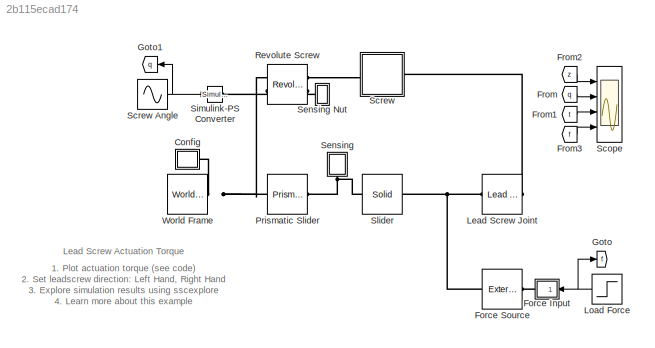
MODEL slx_2b115ecad174
KIND model
CONFIG AbsTol = 1e-4
CONFIG EnableMultiTasking = on
CONFIG FixedStep = auto
CONFIG MaxStep = 0.01
CONFIG MinStep = auto
CONFIG RelTol = 1e-3
CONFIG SampleTimeConstraint = Unconstrained
CONFIG Solver = ode23t
CONFIG SolverName = ode23t
CONFIG StartTime = 0.0
CONFIG StopTime = 16
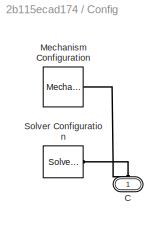
BLOCK [SubSystem] Config
  Ports = [0, 0, 0, 0, 0, 1]
  RequestExecContextInheritance = off
BLOCK [PMIOPort] Config/C
  Side = Left
BLOCK [Reference] Config/Mechanism Configuration  REF=sm_lib/Utilities/Mechanism
Configuration
  Ports = [0, 0, 0, 0, 0, 0, 1]
  SourceBlock = sm_lib/Utilities/Mechanism\nConfiguration
  SourceProductBaseCode = MS
  SourceProductName = Simscape Multibody
  SourceType = Mechanism\nConfiguration
BLOCK [Reference] Config/Solver Configuration  REF=nesl_utility/Solver
Configuration
  Ports = [0, 0, 0, 0, 0, 0, 1]
  SourceBlock = nesl_utility/Solver\nConfiguration
  SourceProductBaseCode = SS
  SourceProductName = Simscape
  SourceType = Solver\nConfiguration
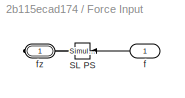
BLOCK [SubSystem] Force Input
  Ports = [1, 0, 0, 0, 0, 0, 1]
  RequestExecContextInheritance = off
BLOCK [Reference] Force Input/SL PS  REF=nesl_utility/Simulink-PS
Converter
  Ports = [1, 0, 0, 0, 0, 0, 1]
  SourceBlock = nesl_utility/Simulink-PS\nConverter
  SourceProductBaseCode = SS
  SourceProductName = Simscape
  SourceType = Simulink-PS\nConverter
BLOCK [Inport] Force Input/f
  IconDisplay = Port number
BLOCK [PMIOPort] Force Input/fz
  Side = Right
BLOCK [Reference] Force Source  REF=sm_lib/Forces and
Torques/External Force
and Torque
  Ports = [0, 0, 0, 0, 0, 1, 1]
  SourceBlock = sm_lib/Forces and\nTorques/External Force\nand Torque
  SourceProductBaseCode = MS
  SourceProductName = Simscape Multibody
  SourceType = External Force\nand Torque
BLOCK [From] From
  GotoTag = q
  TagVisibility = global
BLOCK [From] From1
  GotoTag = t
  TagVisibility = global
BLOCK [From] From2
  GotoTag = z
  TagVisibility = global
BLOCK [From] From3
  GotoTag = f
  TagVisibility = global
BLOCK [Goto] Goto
  GotoTag = f
  TagVisibility = global
BLOCK [Goto] Goto1
  GotoTag = q
  TagVisibility = global
BLOCK [Reference] Lead Screw Joint  REF=sm_lib/Joints/Lead Screw
Joint
  AttributesFormatString = %<Direction>
  Ports = [0, 0, 0, 0, 0, 1, 1]
  SourceBlock = sm_lib/Joints/Lead Screw\nJoint
  SourceProductBaseCode = MS
  SourceProductName = Simscape Multibody
  SourceType = Lead Screw\nJoint
BLOCK [Step] Load Force
  After = 0.2
  AttributesFormatString = %<After>N at %<Time> sec
  SampleTime = 0
  Time = 8
BLOCK [Reference] Prismatic Slider  REF=sm_lib/Joints/Prismatic
Joint
  Ports = [0, 0, 0, 0, 0, 1, 1]
  SourceBlock = sm_lib/Joints/Prismatic\nJoint
  SourceProductBaseCode = MS
  SourceProductName = Simscape Multibody
  SourceType = Prismatic\nJoint
BLOCK [Reference] Revolute Screw  REF=sm_lib/Joints/Revolute Joint
  Ports = [0, 0, 0, 0, 0, 2, 2]
  SourceBlock = sm_lib/Joints/Revolute Joint
  SourceProductBaseCode = MS
  SourceProductName = Simscape Multibody
  SourceType = Revolute Joint
BLOCK [Scope] Scope
  Floating = off
  NumInputPorts = 4
  Ports = [4]
  ScopeSpecificationString = Simulink.scopes.TimeScopeBlockCfg('CurrentConfiguration', extmgr.ConfigurationSet(extmgr.Configuration('Core','General UI',true),extmgr.Configuration('Core','Source UI',true),extmgr.Configuration('Sources','WiredSimulink',true,'DataLoggingSaveFormat','StructureWithTime','DataLoggingDecimation','1','DataLoggingDecimateData',true),extmgr.Configuration('Visuals','Time Domain',true,'SerializedDisplays...<+3653ch>
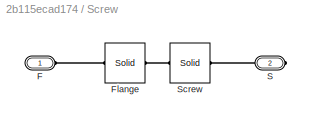
BLOCK [SubSystem] Screw
  Ports = [0, 0, 0, 0, 0, 1, 1]
  RequestExecContextInheritance = off
BLOCK [Sin] Screw Angle
  Amplitude = 1*pi
  Frequency = pi/4
  Ports = [0, 1]
  SampleTime = 0
BLOCK [PMIOPort] Screw/F
  Side = Left
BLOCK [Reference] Screw/Flange  REF=sm_lib/Body Elements/Solid
  Ports = [0, 0, 0, 0, 0, 1, 1]
  SourceBlock = sm_lib/Body Elements/Solid
  SourceProductBaseCode = MS
  SourceProductName = Simscape Multibody
  SourceType = Solid
BLOCK [PMIOPort] Screw/S
  Port = 2
  Side = Right
BLOCK [Reference] Screw/Screw  REF=sm_lib/Body Elements/Solid
  Ports = [0, 0, 0, 0, 0, 1, 1]
  SourceBlock = sm_lib/Body Elements/Solid
  SourceProductBaseCode = MS
  SourceProductName = Simscape Multibody
  SourceType = Solid
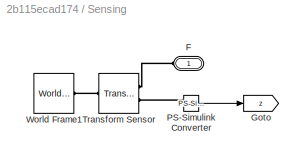
BLOCK [SubSystem] Sensing
  Ports = [0, 0, 0, 0, 0, 1]
  RequestExecContextInheritance = off
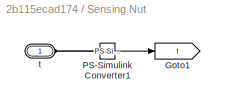
BLOCK [SubSystem] Sensing Nut
  Ports = [0, 0, 0, 0, 0, 1]
  RequestExecContextInheritance = off
BLOCK [Goto] Sensing Nut/Goto1
  GotoTag = t
  TagVisibility = global
BLOCK [Reference] Sensing Nut/PS-Simulink Converter1  REF=nesl_utility/PS-Simulink
Converter
  Ports = [0, 1, 0, 0, 0, 1]
  SourceBlock = nesl_utility/PS-Simulink\nConverter
  SourceProductBaseCode = SS
  SourceProductName = Simscape
  SourceType = PS-Simulink\nConverter
BLOCK [PMIOPort] Sensing Nut/t
  Side = Left
BLOCK [PMIOPort] Sensing/F
  Side = Left
BLOCK [Goto] Sensing/Goto
  GotoTag = z
  TagVisibility = global
BLOCK [Reference] Sensing/PS-Simulink Converter  REF=nesl_utility/PS-Simulink
Converter
  Ports = [0, 1, 0, 0, 0, 1]
  SourceBlock = nesl_utility/PS-Simulink\nConverter
  SourceProductBaseCode = SS
  SourceProductName = Simscape
  SourceType = PS-Simulink\nConverter
BLOCK [Reference] Sensing/Transform Sensor  REF=sm_lib/Frames and
Transforms/Transform
Sensor
  Ports = [0, 0, 0, 0, 0, 1, 2]
  SourceBlock = sm_lib/Frames and\nTransforms/Transform\nSensor
  SourceProductBaseCode = MS
  SourceProductName = Simscape Multibody
  SourceType = Transform\nSensor
BLOCK [Reference] Sensing/World Frame1  REF=sm_lib/Frames and
Transforms/World Frame
  Ports = [0, 0, 0, 0, 0, 0, 1]
  SourceBlock = sm_lib/Frames and\nTransforms/World Frame
  SourceProductBaseCode = MS
  SourceProductName = Simscape Multibody
  SourceType = World Frame
BLOCK [Reference] Simulink-PS Converter  REF=nesl_utility/Simulink-PS
Converter
  Ports = [1, 0, 0, 0, 0, 0, 1]
  SourceBlock = nesl_utility/Simulink-PS\nConverter
  SourceProductBaseCode = SS
  SourceProductName = Simscape
  SourceType = Simulink-PS\nConverter
BLOCK [Reference] Slider  REF=sm_lib/Body Elements/Solid
  Ports = [0, 0, 0, 0, 0, 1, 1]
  SourceBlock = sm_lib/Body Elements/Solid
  SourceProductBaseCode = MS
  SourceProductName = Simscape Multibody
  SourceType = Solid
BLOCK [Reference] World Frame  REF=sm_lib/Frames and
Transforms/World Frame
  Ports = [0, 0, 0, 0, 0, 0, 1]
  SourceBlock = sm_lib/Frames and\nTransforms/World Frame
  SourceProductBaseCode = MS
  SourceProductName = Simscape Multibody
  SourceType = World Frame
ANNOTATION (root): 1. Plot actuation torque ( see code ) 2. Set leadscrew direction: Left Hand , Right Hand 3. Explore simulation results using sscexplore 4. Learn more about this example
ANNOTATION (root): Lead Screw Actuation Torque
LINE Force Input/f:1 -> Force Input/SL PS:1
LINE From1:1 -> Scope:3
LINE From2:1 -> Scope:1
LINE From3:1 -> Scope:4
LINE From:1 -> Scope:2
NET Load Force:1 -> Force Input:1, Goto:1
NET Screw Angle:1 -> Goto1:1, Simulink-PS Converter:1
LINE Sensing Nut/PS-Simulink Converter1:1 -> Sensing Nut/Goto1:1
LINE Sensing/PS-Simulink Converter:1 -> Sensing/Goto:1
PNET net1: Config/C:RConn1 -- Config/Mechanism Configuration:RConn1 -- Config/Solver Configuration:RConn1
PNET net2: Config:LConn1 -- Prismatic Slider:LConn1 -- Revolute Screw:LConn1 -- World Frame:RConn1
PLINE Force Input/SL PS:RConn1 -- Force Input/fz:RConn1
PLINE Force Input:RConn1 -- Force Source:LConn1
PNET net3: Force Source:RConn1 -- Lead Screw Joint:LConn1 -- Slider:RConn1
PLINE Lead Screw Joint:RConn1 -- Screw:RConn1
PNET net4: Prismatic Slider:RConn1 -- Sensing:LConn1 -- Slider:LConn1
PLINE Revolute Screw:LConn2 -- Simulink-PS Converter:RConn1
PLINE Revolute Screw:RConn1 -- Screw:LConn1
PLINE Revolute Screw:RConn2 -- Sensing Nut:LConn1
PLINE Screw/F:RConn1 -- Screw/Flange:RConn1
PLINE Screw/Flange:LConn1 -- Screw/Screw:LConn1
PLINE Screw/S:RConn1 -- Screw/Screw:RConn1
PLINE Sensing Nut/PS-Simulink Converter1:LConn1 -- Sensing Nut/t:RConn1
PLINE Sensing/F:RConn1 -- Sensing/Transform Sensor:RConn1
PLINE Sensing/PS-Simulink Converter:LConn1 -- Sensing/Transform Sensor:RConn2
PLINE Sensing/Transform Sensor:LConn1 -- Sensing/World Frame1:RConn1
note: NET lines group one-source signal fan-out (src -> all destinations, sorted); 1:1 wires keep LINE; PNET lines group multi-terminal physical nets as a canonical sorted terminal list (undirected conserving connections); 2-terminal nets keep the pairwise PLINE form
